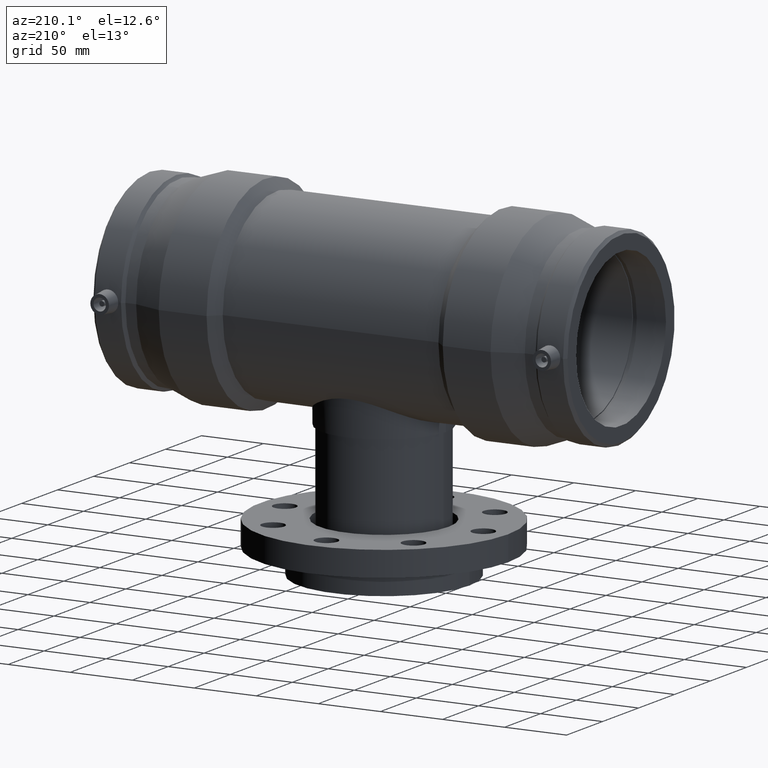
[diagram: clean part render]
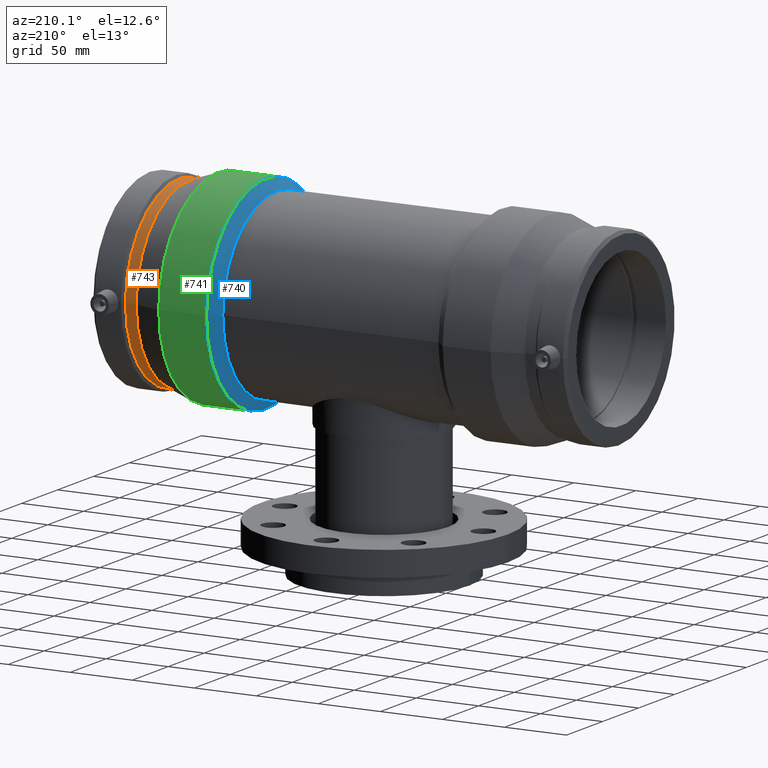
[diagram: same view with three faces highlighted in distinct colors, each labeled with its STEP entity id]
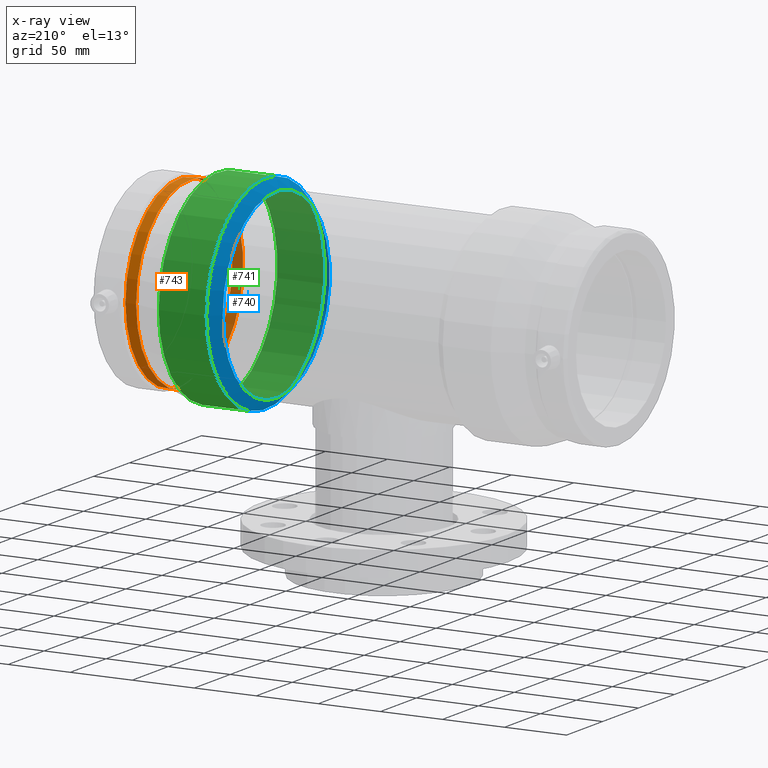
[diagram: x-ray of the same camera — body ghosted, the three highlighted faces saturated]
A machine part, auxiliary view with three faces highlighted in distinct colors.
The next image is the same camera in x-ray (body ghosted, the three faces saturated) — at least one of them is partly hidden behind the body in this view.
Their STEP definitions:

[orange] entity #743 — the highlighted cylindrical surface (bore or boss wall) has radius 74.4232 mm, axis along (1, 0, 0).
#103=FACE_BOUND('',#379,.T.);
#169=CIRCLE('',#852,74.42325);
#170=CIRCLE('',#854,74.42325);
#208=CYLINDRICAL_SURFACE('',#853,74.42325);
#259=FACE_OUTER_BOUND('',#378,.T.);
#378=EDGE_LOOP('',(#664));
#379=EDGE_LOOP('',(#665));
#472=VERTEX_POINT('',#1686);
#473=VERTEX_POINT('',#1689);
#542=EDGE_CURVE('',#472,#472,#169,.T.);
#543=EDGE_CURVE('',#473,#473,#170,.T.);
#664=ORIENTED_EDGE('',*,*,#542,.T.);
#665=ORIENTED_EDGE('',*,*,#543,.F.);
#743=ADVANCED_FACE('',(#259,#103),#208,.T.);
#852=AXIS2_PLACEMENT_3D('',#1687,#1069,#1070);
#853=AXIS2_PLACEMENT_3D('',#1688,#1071,#1072);
#854=AXIS2_PLACEMENT_3D('',#1690,#1073,#1074);
#1069=DIRECTION('center_axis',(1.,0.,0.));
#1070=DIRECTION('ref_axis',(0.,0.,-1.));
#1071=DIRECTION('center_axis',(1.,0.,0.));
#1072=DIRECTION('ref_axis',(0.,1.,0.));
#1073=DIRECTION('center_axis',(1.,0.,0.));
#1074=DIRECTION('ref_axis',(0.,0.,-1.));
#1686=CARTESIAN_POINT('',(156.6,74.42325,0.));
#1687=CARTESIAN_POINT('Origin',(156.6,0.,0.));
#1688=CARTESIAN_POINT('Origin',(160.9,0.,0.));
#1689=CARTESIAN_POINT('',(165.2,74.42325,0.));
#1690=CARTESIAN_POINT('Origin',(165.2,0.,0.));

[blue] entity #740 — the highlighted conical surface has half-angle 45 deg.
#22=CONICAL_SURFACE('',#847,78.375,45.);
#100=FACE_BOUND('',#373,.T.);
#147=CIRCLE('',#807,74.25);
#167=CIRCLE('',#848,82.5);
#256=FACE_OUTER_BOUND('',#372,.T.);
#372=EDGE_LOOP('',(#658));
#373=EDGE_LOOP('',(#659));
#448=VERTEX_POINT('',#1549);
#470=VERTEX_POINT('',#1680);
#518=EDGE_CURVE('',#448,#448,#147,.T.);
#540=EDGE_CURVE('',#470,#470,#167,.T.);
#658=ORIENTED_EDGE('',*,*,#518,.T.);
#659=ORIENTED_EDGE('',*,*,#540,.F.);
#740=ADVANCED_FACE('',(#256,#100),#22,.T.);
#807=AXIS2_PLACEMENT_3D('',#1550,#979,#980);
#847=AXIS2_PLACEMENT_3D('',#1679,#1059,#1060);
#848=AXIS2_PLACEMENT_3D('',#1681,#1061,#1062);
#979=DIRECTION('center_axis',(1.,0.,0.));
#980=DIRECTION('ref_axis',(0.,0.,-1.));
#1059=DIRECTION('center_axis',(1.,0.,0.));
#1060=DIRECTION('ref_axis',(0.,1.,0.));
#1061=DIRECTION('center_axis',(1.,0.,0.));
#1062=DIRECTION('ref_axis',(0.,0.,-1.));
#1549=CARTESIAN_POINT('',(86.905,74.25,0.));
#1550=CARTESIAN_POINT('Origin',(86.905,0.,0.));
#1679=CARTESIAN_POINT('Origin',(91.03,0.,0.));
#1680=CARTESIAN_POINT('',(95.155,82.5,0.));
#1681=CARTESIAN_POINT('Origin',(95.155,0.,0.));

[green] entity #741 — the highlighted cylindrical surface (bore or boss wall) has radius 82.5 mm, axis along (1, 0, 0).
#101=FACE_BOUND('',#375,.T.);
#167=CIRCLE('',#848,82.5);
#168=CIRCLE('',#850,82.5);
#207=CYLINDRICAL_SURFACE('',#849,82.5);
#257=FACE_OUTER_BOUND('',#374,.T.);
#374=EDGE_LOOP('',(#660));
#375=EDGE_LOOP('',(#661));
#470=VERTEX_POINT('',#1680);
#471=VERTEX_POINT('',#1683);
#540=EDGE_CURVE('',#470,#470,#167,.T.);
#541=EDGE_CURVE('',#471,#471,#168,.T.);
#660=ORIENTED_EDGE('',*,*,#540,.T.);
#661=ORIENTED_EDGE('',*,*,#541,.F.);
#741=ADVANCED_FACE('',(#257,#101),#207,.T.);
#848=AXIS2_PLACEMENT_3D('',#1681,#1061,#1062);
#849=AXIS2_PLACEMENT_3D('',#1682,#1063,#1064);
#850=AXIS2_PLACEMENT_3D('',#1684,#1065,#1066);
#1061=DIRECTION('center_axis',(1.,0.,0.));
#1062=DIRECTION('ref_axis',(0.,0.,-1.));
#1063=DIRECTION('center_axis',(1.,0.,0.));
#1064=DIRECTION('ref_axis',(0.,1.,0.));
#1065=DIRECTION('center_axis',(1.,0.,0.));
#1066=DIRECTION('ref_axis',(0.,0.,-1.));
#1680=CARTESIAN_POINT('',(95.155,82.5,0.));
#1681=CARTESIAN_POINT('Origin',(95.155,0.,0.));
#1682=CARTESIAN_POINT('Origin',(114.4275,0.,0.));
#1683=CARTESIAN_POINT('',(133.7,82.5,0.));
#1684=CARTESIAN_POINT('Origin',(133.7,0.,0.));